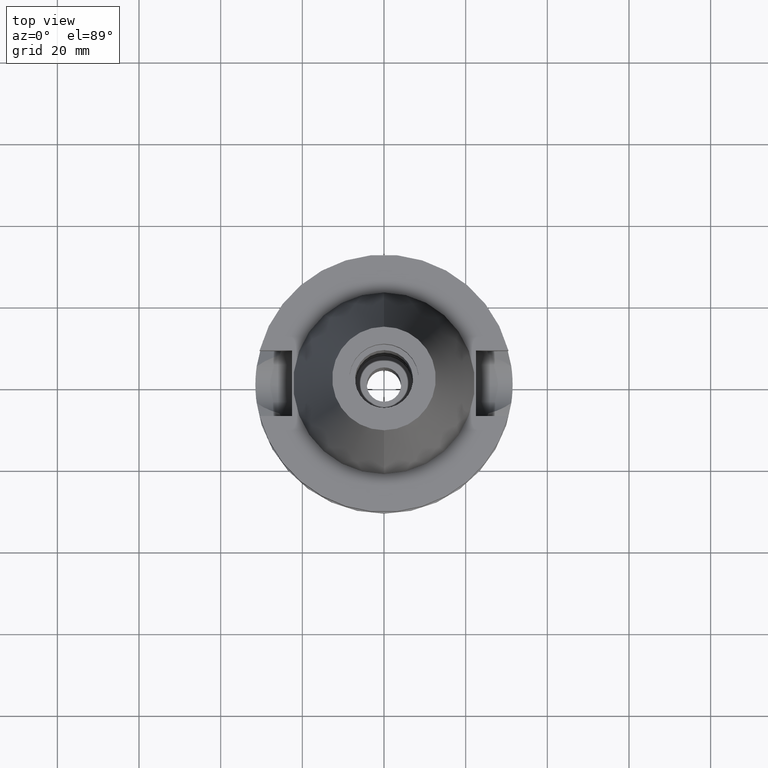
[diagram: clean part render]
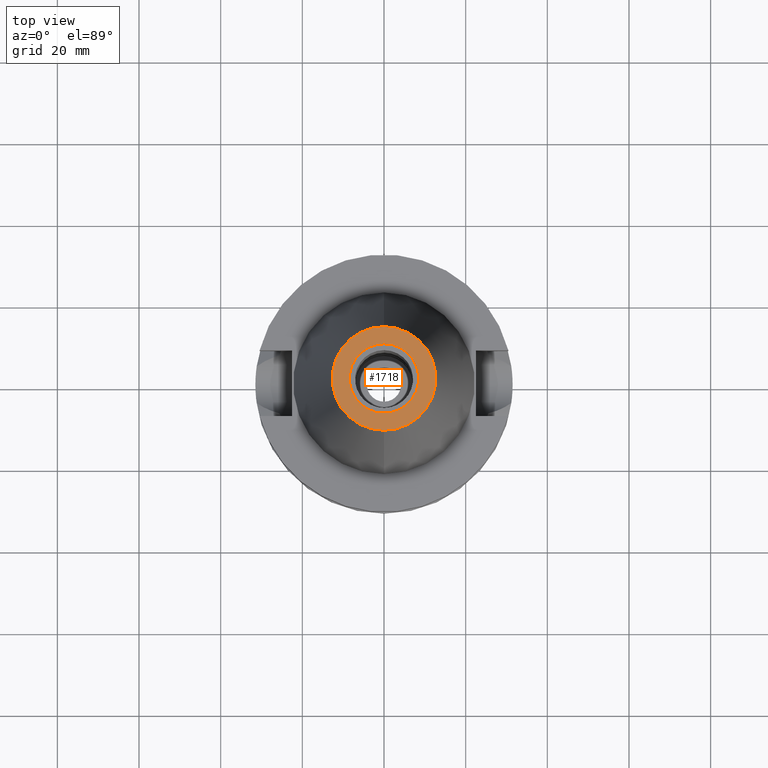
[diagram: same view with one face highlighted and labeled with its STEP entity id]
A machine part, top view. The second image highlights one B-rep face of the part: STEP entity #1718.
In plain terms, the highlighted planar face has unit normal (0, 0, -1).
Its self-contained STEP definition (entity closure, byte-faithful):
#8 = DIRECTION ( 'NONE',  ( 0.0000000000000000000, 1.000000000000000000, 0.0000000000000000000 ) ) ;
#77 = CARTESIAN_POINT ( 'NONE',  ( 0.0000000000000000000, -12.68766899429999917, 65.40000000000000568 ) ) ;
#151 = EDGE_CURVE ( 'NONE', #916, #2632, #2418, .T. ) ;
#298 = CIRCLE ( 'NONE', #2364, 12.68766899429999917 ) ;
#336 = FACE_OUTER_BOUND ( 'NONE', #2446, .T. ) ;
#458 = CARTESIAN_POINT ( 'NONE',  ( 0.0000000000000000000, 8.500000000000000000, 65.40000000000000568 ) ) ;
#543 = DIRECTION ( 'NONE',  ( 0.0000000000000000000, -1.000000000000000000, 0.0000000000000000000 ) ) ;
#594 = ORIENTED_EDGE ( 'NONE', *, *, #905, .F. ) ;
#735 = DIRECTION ( 'NONE',  ( 0.0000000000000000000, 0.0000000000000000000, 1.000000000000000000 ) ) ;
#757 = AXIS2_PLACEMENT_3D ( 'NONE', #2662, #735, #1926 ) ;
#905 = EDGE_CURVE ( 'NONE', #2632, #916, #1060, .T. ) ;
#916 = VERTEX_POINT ( 'NONE', #458 ) ;
#933 = EDGE_CURVE ( 'NONE', #1222, #2316, #2573, .T. ) ;
#988 = ORIENTED_EDGE ( 'NONE', *, *, #151, .F. ) ;
#1060 = CIRCLE ( 'NONE', #757, 8.500000000000000000 ) ;
#1122 = ORIENTED_EDGE ( 'NONE', *, *, #933, .F. ) ;
#1191 = CARTESIAN_POINT ( 'NONE',  ( 0.0000000000000000000, 0.0000000000000000000, 65.40000000000000568 ) ) ;
#1203 = CARTESIAN_POINT ( 'NONE',  ( 0.0000000000000000000, 0.0000000000000000000, 65.40000000000000568 ) ) ;
#1222 = VERTEX_POINT ( 'NONE', #2460 ) ;
#1528 = PLANE ( 'NONE',  #3018 ) ;
#1668 = DIRECTION ( 'NONE',  ( 0.0000000000000000000, 1.000000000000000000, 0.0000000000000000000 ) ) ;
#1718 = ADVANCED_FACE ( 'NONE', ( #336, #2704 ), #1528, .F. ) ;
#1777 = DIRECTION ( 'NONE',  ( 0.0000000000000000000, 0.0000000000000000000, -1.000000000000000000 ) ) ;
#1877 = CARTESIAN_POINT ( 'NONE',  ( 0.0000000000000000000, -8.500000000000000000, 65.40000000000000568 ) ) ;
#1918 = DIRECTION ( 'NONE',  ( 0.0000000000000000000, 0.0000000000000000000, -1.000000000000000000 ) ) ;
#1926 = DIRECTION ( 'NONE',  ( 0.0000000000000000000, -1.000000000000000000, 0.0000000000000000000 ) ) ;
#2068 = AXIS2_PLACEMENT_3D ( 'NONE', #1203, #2161, #8 ) ;
#2161 = DIRECTION ( 'NONE',  ( 0.0000000000000000000, 0.0000000000000000000, -1.000000000000000000 ) ) ;
#2215 = EDGE_CURVE ( 'NONE', #2316, #1222, #298, .T. ) ;
#2316 = VERTEX_POINT ( 'NONE', #77 ) ;
#2364 = AXIS2_PLACEMENT_3D ( 'NONE', #1191, #1918, #2881 ) ;
#2418 = CIRCLE ( 'NONE', #2667, 8.500000000000000000 ) ;
#2446 = EDGE_LOOP ( 'NONE', ( #1122, #2585 ) ) ;
#2460 = CARTESIAN_POINT ( 'NONE',  ( 0.0000000000000000000, 12.68766899429999917, 65.40000000000000568 ) ) ;
#2573 = CIRCLE ( 'NONE', #2068, 12.68766899429999917 ) ;
#2585 = ORIENTED_EDGE ( 'NONE', *, *, #2215, .F. ) ;
#2632 = VERTEX_POINT ( 'NONE', #1877 ) ;
#2662 = CARTESIAN_POINT ( 'NONE',  ( 0.0000000000000000000, 0.0000000000000000000, 65.40000000000000568 ) ) ;
#2667 = AXIS2_PLACEMENT_3D ( 'NONE', #3065, #3081, #1668 ) ;
#2704 = FACE_BOUND ( 'NONE', #2754, .T. ) ;
#2754 = EDGE_LOOP ( 'NONE', ( #988, #594 ) ) ;
#2881 = DIRECTION ( 'NONE',  ( 0.0000000000000000000, -1.000000000000000000, 0.0000000000000000000 ) ) ;
#2943 = CARTESIAN_POINT ( 'NONE',  ( 0.0000000000000000000, 0.0000000000000000000, 65.40000000000000568 ) ) ;
#3018 = AXIS2_PLACEMENT_3D ( 'NONE', #2943, #1777, #543 ) ;
#3065 = CARTESIAN_POINT ( 'NONE',  ( 0.0000000000000000000, 0.0000000000000000000, 65.40000000000000568 ) ) ;
#3081 = DIRECTION ( 'NONE',  ( 0.0000000000000000000, 0.0000000000000000000, 1.000000000000000000 ) ) ;